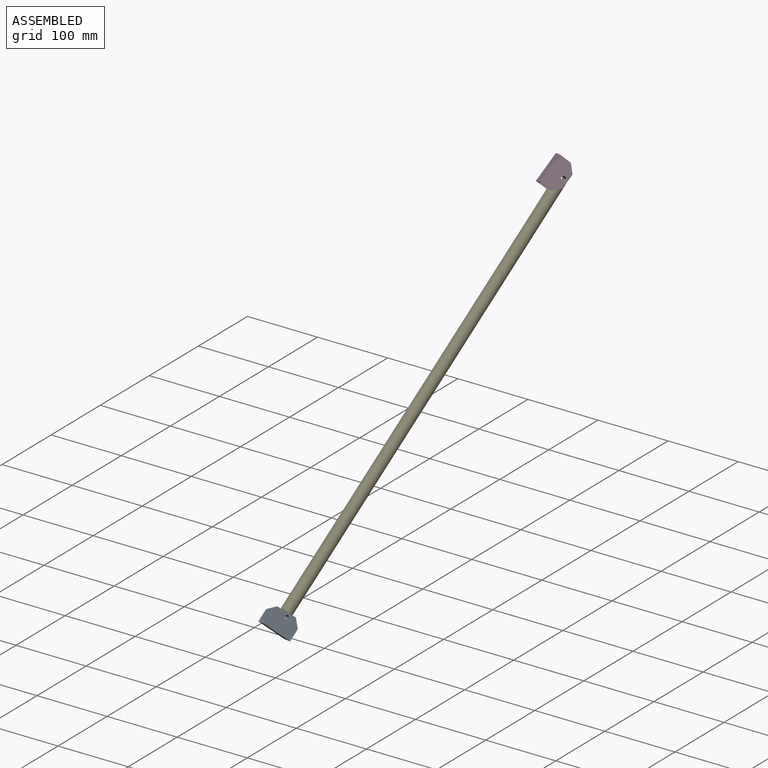
[diagram: assembled view]
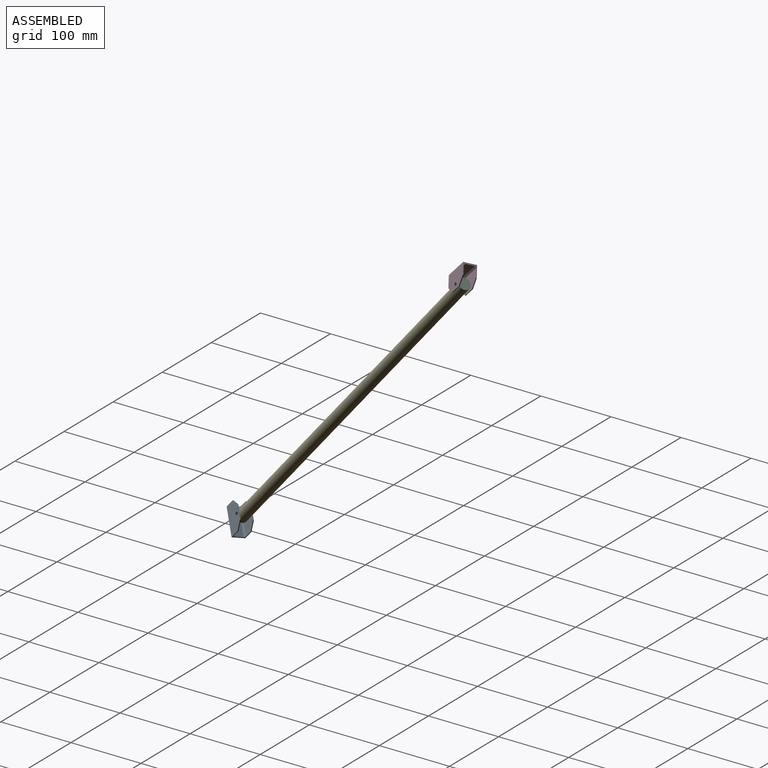
[diagram: assembled view, second angle]
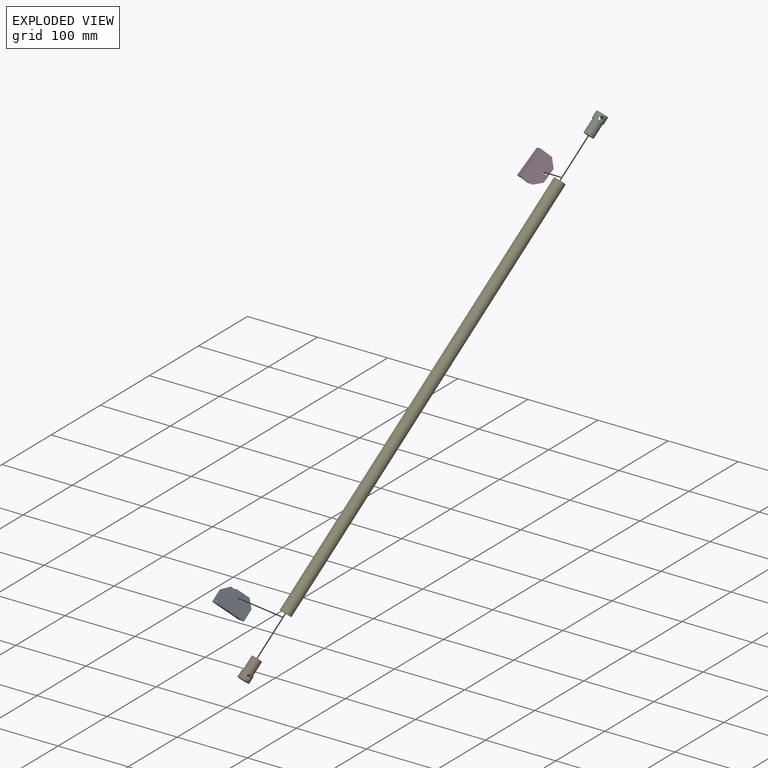
[diagram: exploded view]
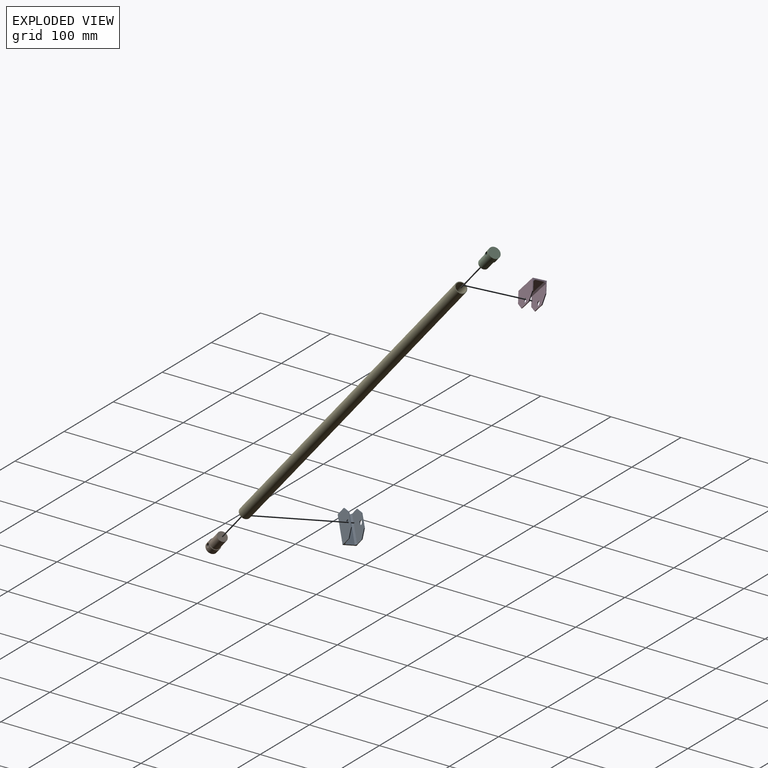
[diagram: exploded view, second angle]
ASSEMBLY  parts=5 mates=6
PART A: 18 faces, bbox 18x40x27 mm
  f0: plane 40x12mm, normal (0,0,1), area 480mm2, adj f1,f3,f16,f17
  f1: plane 18x17mm, normal (0,1,0), area 70mm2, adj f0,f2,f4,f5,f6,f8,f10,f11
  f2: plane 40x27mm, normal (-1,0,0), area 951.7mm2, adj f1,f3,f5,f7,f11,f12,f15
  f3: plane 18x17mm, normal (0,-1,0), area 70mm2, adj f0,f2,f4,f5,f6,f8,f12,f13
  f4: plane 40x27mm, normal (1,0,0), area 951.7mm2, adj f1,f3,f5,f9,f10,f13,f14
  f5: plane 40x18mm, normal (0,0,-1), area 720mm2, adj f1,f2,f3,f4
  f6: plane 40x23mm, normal (1,0,0), area 791.7mm2, adj f1,f3,f7,f11,f12,f15,f17
  f7: plane 20x1mm, normal (0,0,1), area 20mm2, adj f2,f6,f11,f12
  f8: plane 40x23mm, normal (-1,0,0), area 791.7mm2, adj f1,f3,f9,f10,f13,f14,f16
  f9: plane 20x1mm, normal (0,0,1), area 20mm2, adj f4,f8,f10,f13
  f10: plane 10x10mm, normal (0,0.71,0.71), area 14.1mm2, adj f1,f4,f8,f9
  f11: plane 10x10mm, normal (0,0.71,0.71), area 14.1mm2, adj f1,f2,f6,f7
  f12: plane 10x10mm, normal (0,-0.71,0.71), area 14.1mm2, adj f2,f3,f6,f7
  f13: plane 10x10mm, normal (0,-0.71,0.71), area 14.1mm2, adj f3,f4,f8,f9
  f14: cylinder r=3mm len=6mm, axis (-1,0,0), area 18.8mm2, adj f4,f8
  f15: cylinder r=3mm len=6mm, axis (-1,0,0), area 18.8mm2, adj f2,f6
  f16: plane 40x2mm, normal (-0.71,0,0.71), area 113.1mm2, adj f0,f1,f3,f8
  f17: plane 40x2mm, normal (0.71,0,0.71), area 113.1mm2, adj f0,f1,f3,f6
PART B: 6 faces, bbox 30x16x16 mm
  f0: plane 14x14mm, normal (1,0,0), area 153.9mm2, adj f1
  f1: cylinder r=7mm len=20mm, axis (1,0,0), area 879.6mm2, adj f0,f2
  f2: plane 16x16mm, normal (1,0,0), area 47.1mm2, adj f1,f3
  f3: cylinder r=8mm len=16mm, axis (1,0,0), area 445.1mm2, adj f2,f4,f5
  f4: plane 16x16mm, normal (-1,0,0), area 201.1mm2, adj f3
  f5: cylinder r=3mm len=16mm, axis (0,-1,0), area 290.7mm2, adj f3
PART C: same geometry as B
PART D: same geometry as A
PART E: 4 faces, bbox 16x16x600 mm
  f0: cylinder r=7mm len=600mm, axis (0,0,-1), area 26389.4mm2, adj f2,f3
  f1: cylinder r=8mm len=600mm, axis (0,0,-1), area 30159.3mm2, adj f2,f3
  f2: plane 16x16mm, normal (0,0,1), area 47.1mm2, adj f0,f1
  f3: plane 16x16mm, normal (0,0,-1), area 47.1mm2, adj f0,f1
PLACE A rot(axis=(-0.77,-0.03,-0.64),56.4deg) t=(-112.01,-915.64,-316.3)mm
PLACE B rot(axis=(-0.77,-0.48,-0.42),168.4deg) t=(-91.31,-900.8,-317.29)mm
PLACE C rot(axis=(-0.5,0.87,0.04),126.2deg) t=(30.32,-497.15,137.32)mm
PLACE D rot(axis=(-0.92,0.25,-0.3),142.4deg) t=(14.97,-490.13,155.77)mm
PLACE E rot(axis=(-0.57,0.45,0.68),60deg) t=(-89.35,-894.28,-309.96)mm
MATE cylindrical B.f1 <-> E.f0  axis (0.2,0.65,0.73) through (-87.39,-887.77,-302.63)mm
MATE cylindrical C.f5 <-> D.f14  axis (0.72,-0.6,0.34) through (34.99,-505.93,135.69)mm
MATE planar E.f1 <-> B.f1  axis (-0.2,-0.65,-0.73) through (-89.35,-894.28,-309.96)mm
MATE cylindrical A.f14 <-> B.f5  axis (-0.82,0.52,-0.24) through (-83.17,-901.31,-310.83)mm
MATE planar C.f1 <-> E.f1  axis (-0.2,-0.65,-0.73) through (28.35,-503.66,129.99)mm
MATE cylindrical C.f1 <-> E.f0  axis (-0.2,-0.65,-0.73) through (26.39,-510.17,122.66)mm
